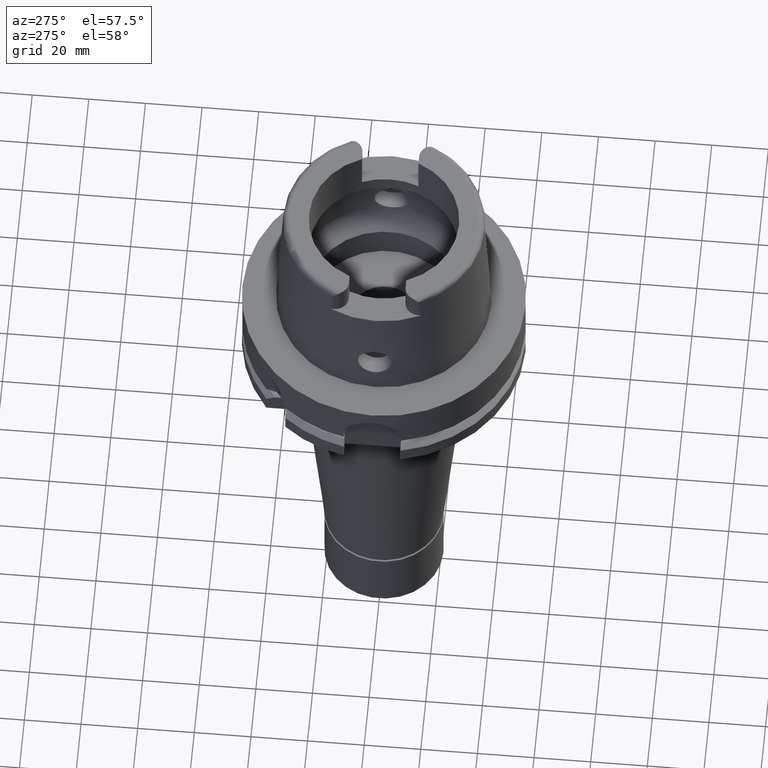
[diagram: clean part render]
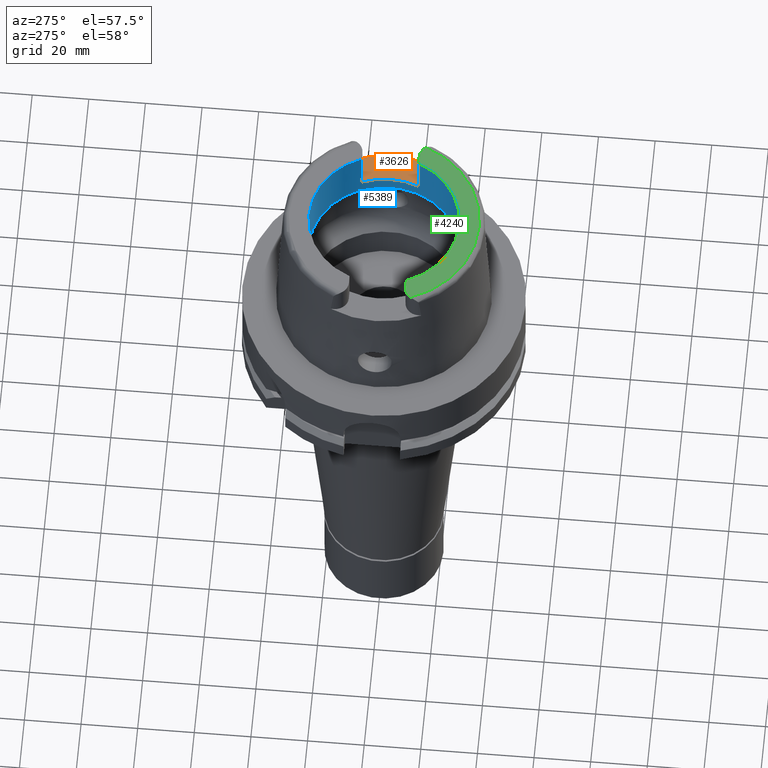
[diagram: same view with three faces highlighted in distinct colors, each labeled with its STEP entity id]
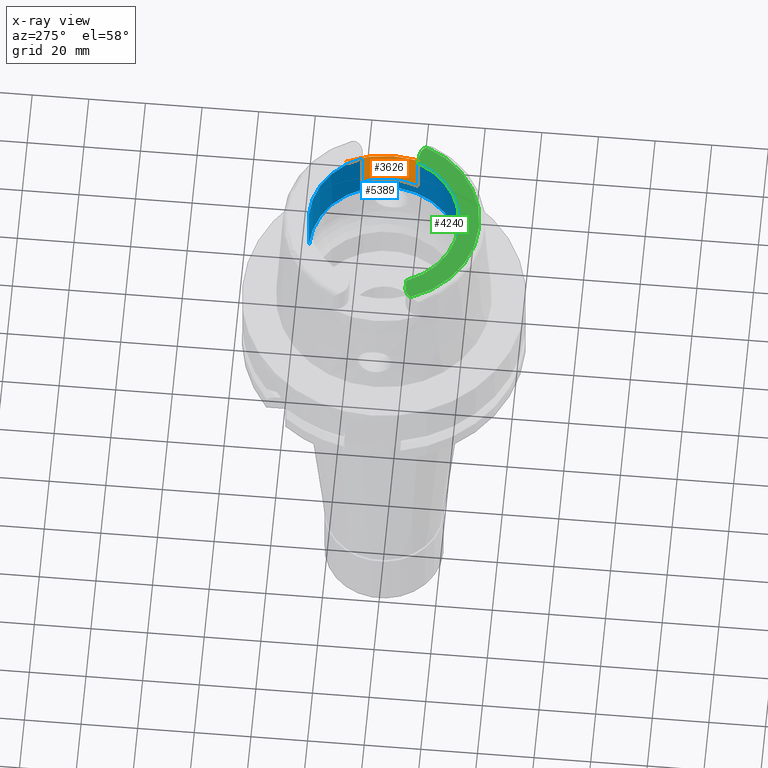
[diagram: x-ray of the same camera — body ghosted, the three highlighted faces saturated]
A machine part, auxiliary view with three faces highlighted in distinct colors.
The next image is the same camera in x-ray (body ghosted, the three faces saturated) — at least one of them is partly hidden behind the body in this view.
Their STEP definitions:

[orange] entity #3626 — the highlighted planar face has unit normal (0, 0, 1).
#25 = VERTEX_POINT ( 'NONE', #1719 ) ;
#100 = VERTEX_POINT ( 'NONE', #5228 ) ;
#275 = ORIENTED_EDGE ( 'NONE', *, *, #1398, .F. ) ;
#385 = CARTESIAN_POINT ( 'NONE',  ( 32.25000000000000000, -14.89000000000000057, 35.00000000000000000 ) ) ;
#440 = PLANE ( 'NONE',  #624 ) ;
#550 = ORIENTED_EDGE ( 'NONE', *, *, #5430, .F. ) ;
#624 = AXIS2_PLACEMENT_3D ( 'NONE', #707, #5454, #2165 ) ;
#707 = CARTESIAN_POINT ( 'NONE',  ( 0.0000000000000000000, 0.0000000000000000000, 35.00000000000000000 ) ) ;
#735 = CARTESIAN_POINT ( 'NONE',  ( 0.0000000000000000000, 0.0000000000000000000, 35.00000000000000000 ) ) ;
#752 = CARTESIAN_POINT ( 'NONE',  ( 32.25000000000000000, -15.44428485661910599, 35.00000000000000000 ) ) ;
#958 = CARTESIAN_POINT ( 'NONE',  ( 27.36999999999999744, -14.89000000000000057, 35.00000000000000000 ) ) ;
#1057 = CARTESIAN_POINT ( 'NONE',  ( 27.36999999999999744, 10.00999999999999979, 35.00000000000000000 ) ) ;
#1177 = DIRECTION ( 'NONE',  ( 0.0000000000000000000, 0.0000000000000000000, 1.000000000000000000 ) ) ;
#1270 = ORIENTED_EDGE ( 'NONE', *, *, #4353, .F. ) ;
#1300 = EDGE_CURVE ( 'NONE', #5100, #4832, #4510, .T. ) ;
#1342 = CARTESIAN_POINT ( 'NONE',  ( 32.25000000000000000, -14.89000000000000057, 35.00000000000000000 ) ) ;
#1352 = LINE ( 'NONE', #3947, #2355 ) ;
#1398 = EDGE_CURVE ( 'NONE', #4832, #25, #2310, .T. ) ;
#1598 = ORIENTED_EDGE ( 'NONE', *, *, #4784, .F. ) ;
#1638 = DIRECTION ( 'NONE',  ( 0.0000000000000000000, -1.000000000000000000, 0.0000000000000000000 ) ) ;
#1710 = AXIS2_PLACEMENT_3D ( 'NONE', #735, #1177, #5476 ) ;
#1716 = B_SPLINE_CURVE_WITH_KNOTS ( 'NONE', 3,
 ( #4257, #3796, #752, #385 ),
 .UNSPECIFIED., .F., .F.,
 ( 4, 4 ),
 ( 0.0000000000000000000, 1.000000000000000000 ),
 .UNSPECIFIED. ) ;
#1719 = CARTESIAN_POINT ( 'NONE',  ( 24.53670515777999839, -10.00999999999999979, 35.00000000000000000 ) ) ;
#1803 = EDGE_LOOP ( 'NONE', ( #275, #4851, #1598, #550, #2552, #5238, #2835, #1270 ) ) ;
#1878 = CARTESIAN_POINT ( 'NONE',  ( 27.36999999999999744, -10.00999999999999979, 35.00000000000000000 ) ) ;
#2118 = EDGE_CURVE ( 'NONE', #5173, #100, #3754, .T. ) ;
#2149 = CARTESIAN_POINT ( 'NONE',  ( 27.36999999999999744, 14.89000000000000057, 35.00000000000000000 ) ) ;
#2165 = DIRECTION ( 'NONE',  ( 1.000000000000000000, 0.0000000000000000000, 0.0000000000000000000 ) ) ;
#2187 = DIRECTION ( 'NONE',  ( 0.8896561898442558736, 0.4566309931134779343, 0.0000000000000000000 ) ) ;
#2278 = CARTESIAN_POINT ( 'NONE',  ( 32.25000000000000000, -16.55285457013000183, 35.00000000000000000 ) ) ;
#2310 = LINE ( 'NONE', #1878, #3328 ) ;
#2355 = VECTOR ( 'NONE', #4375, 1000.000000000000000 ) ;
#2448 = CIRCLE ( 'NONE', #3884, 36.24995854370000359 ) ;
#2550 = CARTESIAN_POINT ( 'NONE',  ( 32.25000000000000000, 16.55285457013000183, 35.00000000000000000 ) ) ;
#2552 = ORIENTED_EDGE ( 'NONE', *, *, #3211, .F. ) ;
#2777 = VECTOR ( 'NONE', #3727, 1000.000000000000114 ) ;
#2835 = ORIENTED_EDGE ( 'NONE', *, *, #4515, .F. ) ;
#2856 = CARTESIAN_POINT ( 'NONE',  ( 0.0000000000000000000, 0.0000000000000000000, 35.00000000000000000 ) ) ;
#2997 = DIRECTION ( 'NONE',  ( 0.0000000000000000000, 0.0000000000000000000, 1.000000000000000000 ) ) ;
#3153 = DIRECTION ( 'NONE',  ( 1.000000000000000000, 0.0000000000000000000, 0.0000000000000000000 ) ) ;
#3205 = DIRECTION ( 'NONE',  ( -1.000000000000000000, -1.460812116737999860E-13, 0.0000000000000000000 ) ) ;
#3211 = EDGE_CURVE ( 'NONE', #100, #5535, #3377, .T. ) ;
#3328 = VECTOR ( 'NONE', #3205, 1000.000000000000000 ) ;
#3377 = LINE ( 'NONE', #4627, #2777 ) ;
#3437 = CARTESIAN_POINT ( 'NONE',  ( 24.53670515777999839, 10.00999999999999979, 35.00000000000000000 ) ) ;
#3626 = ADVANCED_FACE ( 'NONE', ( #5510 ), #440, .T. ) ;
#3633 = DIRECTION ( 'NONE',  ( 0.0000000000000000000, 0.0000000000000000000, 1.000000000000000000 ) ) ;
#3727 = DIRECTION ( 'NONE',  ( -2.841526755965894529E-06, 0.9999999999959628960, 2.136488158935919871E-14 ) ) ;
#3754 = CIRCLE ( 'NONE', #4212, 4.879999999999999005 ) ;
#3796 = CARTESIAN_POINT ( 'NONE',  ( 32.25000000000000000, -15.99856971323821142, 35.00000000000000000 ) ) ;
#3884 = AXIS2_PLACEMENT_3D ( 'NONE', #2856, #3907, #2187 ) ;
#3907 = DIRECTION ( 'NONE',  ( 0.0000000000000000000, 0.0000000000000000000, -1.000000000000000000 ) ) ;
#3947 = CARTESIAN_POINT ( 'NONE',  ( 24.53670515777999839, 10.00999999999999979, 35.00000000000000000 ) ) ;
#4212 = AXIS2_PLACEMENT_3D ( 'NONE', #2149, #2997, #1638 ) ;
#4257 = CARTESIAN_POINT ( 'NONE',  ( 32.25000000000000000, -16.55285457013000183, 35.00000000000000000 ) ) ;
#4353 = EDGE_CURVE ( 'NONE', #25, #4397, #4424, .T. ) ;
#4375 = DIRECTION ( 'NONE',  ( 1.000000000000000000, -1.416925057436999913E-13, 0.0000000000000000000 ) ) ;
#4397 = VERTEX_POINT ( 'NONE', #3437 ) ;
#4414 = AXIS2_PLACEMENT_3D ( 'NONE', #958, #3633, #3153 ) ;
#4424 = CIRCLE ( 'NONE', #1710, 26.50000000000000711 ) ;
#4510 = CIRCLE ( 'NONE', #4414, 4.880000000000002558 ) ;
#4515 = EDGE_CURVE ( 'NONE', #4397, #5173, #1352, .T. ) ;
#4627 = CARTESIAN_POINT ( 'NONE',  ( 32.25000000000000000, 14.89000000000000057, 35.00000000000000000 ) ) ;
#4784 = EDGE_CURVE ( 'NONE', #5246, #5100, #1716, .T. ) ;
#4832 = VERTEX_POINT ( 'NONE', #5527 ) ;
#4851 = ORIENTED_EDGE ( 'NONE', *, *, #1300, .F. ) ;
#5100 = VERTEX_POINT ( 'NONE', #1342 ) ;
#5173 = VERTEX_POINT ( 'NONE', #1057 ) ;
#5228 = CARTESIAN_POINT ( 'NONE',  ( 32.25000000000000000, 14.89000000000000057, 35.00000000000000000 ) ) ;
#5238 = ORIENTED_EDGE ( 'NONE', *, *, #2118, .F. ) ;
#5246 = VERTEX_POINT ( 'NONE', #2278 ) ;
#5430 = EDGE_CURVE ( 'NONE', #5535, #5246, #2448, .T. ) ;
#5454 = DIRECTION ( 'NONE',  ( 0.0000000000000000000, 0.0000000000000000000, 1.000000000000000000 ) ) ;
#5476 = DIRECTION ( 'NONE',  ( 0.9259134021805098813, -0.3777358490566039562, 0.0000000000000000000 ) ) ;
#5510 = FACE_OUTER_BOUND ( 'NONE', #1803, .T. ) ;
#5527 = CARTESIAN_POINT ( 'NONE',  ( 27.36999999999999744, -10.00999999999999979, 35.00000000000000000 ) ) ;
#5535 = VERTEX_POINT ( 'NONE', #2550 ) ;

[blue] entity #5389 — the highlighted cylindrical surface (partial cylindrical patch) has radius 26.5 mm, axis along (0, 0, 1).
#25 = VERTEX_POINT ( 'NONE', #1719 ) ;
#56 = LINE ( 'NONE', #477, #267 ) ;
#207 = ORIENTED_EDGE ( 'NONE', *, *, #2075, .T. ) ;
#267 = VECTOR ( 'NONE', #5198, 1000.000000000000000 ) ;
#313 = CARTESIAN_POINT ( 'NONE',  ( 0.0000000000000000000, 26.50000000000000000, 30.00337567297000163 ) ) ;
#425 = CARTESIAN_POINT ( 'NONE',  ( 24.53670515777999839, -10.00999999999999979, 35.00000000000000000 ) ) ;
#477 = CARTESIAN_POINT ( 'NONE',  ( 0.0000000000000000000, -26.50000000000000000, 30.00337567297000163 ) ) ;
#516 = DIRECTION ( 'NONE',  ( 0.0000000000000000000, 0.0000000000000000000, -1.000000000000000000 ) ) ;
#555 = AXIS2_PLACEMENT_3D ( 'NONE', #2123, #516, #3532 ) ;
#609 = VECTOR ( 'NONE', #2036, 1000.000000000000000 ) ;
#615 = CARTESIAN_POINT ( 'NONE',  ( 24.53670515777999839, 10.00999999999999979, 50.00000000000000000 ) ) ;
#733 = AXIS2_PLACEMENT_3D ( 'NONE', #1586, #746, #1162 ) ;
#735 = CARTESIAN_POINT ( 'NONE',  ( 0.0000000000000000000, 0.0000000000000000000, 35.00000000000000000 ) ) ;
#746 = DIRECTION ( 'NONE',  ( 0.0000000000000000000, 0.0000000000000000000, 1.000000000000000000 ) ) ;
#801 = FACE_OUTER_BOUND ( 'NONE', #5156, .T. ) ;
#825 = EDGE_CURVE ( 'NONE', #25, #1018, #4186, .T. ) ;
#982 = ORIENTED_EDGE ( 'NONE', *, *, #1205, .T. ) ;
#1018 = VERTEX_POINT ( 'NONE', #4780 ) ;
#1162 = DIRECTION ( 'NONE',  ( 0.0000000000000000000, 1.000000000000000000, 0.0000000000000000000 ) ) ;
#1177 = DIRECTION ( 'NONE',  ( 0.0000000000000000000, 0.0000000000000000000, 1.000000000000000000 ) ) ;
#1205 = EDGE_CURVE ( 'NONE', #1254, #5540, #1800, .T. ) ;
#1221 = ORIENTED_EDGE ( 'NONE', *, *, #825, .F. ) ;
#1254 = VERTEX_POINT ( 'NONE', #1484 ) ;
#1346 = EDGE_CURVE ( 'NONE', #1254, #4397, #4479, .T. ) ;
#1374 = CARTESIAN_POINT ( 'NONE',  ( 0.0000000000000000000, -26.50000000000000000, 30.00337567297000163 ) ) ;
#1380 = DIRECTION ( 'NONE',  ( 0.0000000000000000000, 0.0000000000000000000, -1.000000000000000000 ) ) ;
#1484 = CARTESIAN_POINT ( 'NONE',  ( 24.53670515777999839, 10.00999999999999979, 50.00000000000000000 ) ) ;
#1586 = CARTESIAN_POINT ( 'NONE',  ( 0.0000000000000000000, 0.0000000000000000000, -167.8750000000000000 ) ) ;
#1596 = ORIENTED_EDGE ( 'NONE', *, *, #4353, .T. ) ;
#1710 = AXIS2_PLACEMENT_3D ( 'NONE', #735, #1177, #5476 ) ;
#1719 = CARTESIAN_POINT ( 'NONE',  ( 24.53670515777999839, -10.00999999999999979, 35.00000000000000000 ) ) ;
#1800 = CIRCLE ( 'NONE', #3414, 26.50000000000000711 ) ;
#2036 = DIRECTION ( 'NONE',  ( 0.0000000000000000000, -4.370575506604999649E-14, 1.000000000000000000 ) ) ;
#2070 = VECTOR ( 'NONE', #1380, 1000.000000000000000 ) ;
#2075 = EDGE_CURVE ( 'NONE', #4989, #1018, #3039, .T. ) ;
#2113 = EDGE_CURVE ( 'NONE', #5472, #5540, #2517, .T. ) ;
#2123 = CARTESIAN_POINT ( 'NONE',  ( 0.0000000000000000000, 0.0000000000000000000, 30.00337567297000163 ) ) ;
#2131 = CARTESIAN_POINT ( 'NONE',  ( 0.0000000000000000000, -26.50000000000000000, 50.00000000000000000 ) ) ;
#2148 = DIRECTION ( 'NONE',  ( 0.0000000000000000000, 0.0000000000000000000, 1.000000000000000000 ) ) ;
#2517 = LINE ( 'NONE', #313, #609 ) ;
#2519 = CYLINDRICAL_SURFACE ( 'NONE', #733, 26.50000000000000000 ) ;
#2812 = VERTEX_POINT ( 'NONE', #1374 ) ;
#2951 = CARTESIAN_POINT ( 'NONE',  ( 0.0000000000000000000, 0.0000000000000000000, 50.00000000000000000 ) ) ;
#2968 = DIRECTION ( 'NONE',  ( 0.0000000000000000000, 0.0000000000000000000, 1.000000000000000000 ) ) ;
#3039 = CIRCLE ( 'NONE', #4040, 26.50000000000000000 ) ;
#3158 = ORIENTED_EDGE ( 'NONE', *, *, #5442, .T. ) ;
#3414 = AXIS2_PLACEMENT_3D ( 'NONE', #2951, #4704, #4672 ) ;
#3437 = CARTESIAN_POINT ( 'NONE',  ( 24.53670515777999839, 10.00999999999999979, 35.00000000000000000 ) ) ;
#3532 = DIRECTION ( 'NONE',  ( 0.0000000000000000000, 1.000000000000000000, 0.0000000000000000000 ) ) ;
#3841 = CARTESIAN_POINT ( 'NONE',  ( 0.0000000000000000000, 0.0000000000000000000, 50.00000000000000000 ) ) ;
#3909 = ORIENTED_EDGE ( 'NONE', *, *, #2113, .F. ) ;
#3934 = CARTESIAN_POINT ( 'NONE',  ( 0.0000000000000000000, 26.50000000000000000, 50.00000000000000000 ) ) ;
#4040 = AXIS2_PLACEMENT_3D ( 'NONE', #3841, #2968, #5176 ) ;
#4186 = LINE ( 'NONE', #425, #5500 ) ;
#4353 = EDGE_CURVE ( 'NONE', #25, #4397, #4424, .T. ) ;
#4388 = CARTESIAN_POINT ( 'NONE',  ( 0.0000000000000000000, 26.50000000000000000, 30.00337567297000163 ) ) ;
#4397 = VERTEX_POINT ( 'NONE', #3437 ) ;
#4424 = CIRCLE ( 'NONE', #1710, 26.50000000000000711 ) ;
#4479 = LINE ( 'NONE', #615, #2070 ) ;
#4506 = EDGE_CURVE ( 'NONE', #2812, #4989, #56, .T. ) ;
#4672 = DIRECTION ( 'NONE',  ( 0.9259134021805098813, 0.3777358490566039562, 0.0000000000000000000 ) ) ;
#4704 = DIRECTION ( 'NONE',  ( 0.0000000000000000000, 0.0000000000000000000, 1.000000000000000000 ) ) ;
#4760 = ORIENTED_EDGE ( 'NONE', *, *, #4506, .T. ) ;
#4780 = CARTESIAN_POINT ( 'NONE',  ( 24.53670515777999839, -10.00999999999999979, 50.00000000000000000 ) ) ;
#4989 = VERTEX_POINT ( 'NONE', #2131 ) ;
#5156 = EDGE_LOOP ( 'NONE', ( #5401, #982, #3909, #3158, #4760, #207, #1221, #1596 ) ) ;
#5176 = DIRECTION ( 'NONE',  ( 0.0000000000000000000, -1.000000000000000000, 0.0000000000000000000 ) ) ;
#5198 = DIRECTION ( 'NONE',  ( 0.0000000000000000000, 4.370575506604999649E-14, 1.000000000000000000 ) ) ;
#5333 = CIRCLE ( 'NONE', #555, 26.50000000000000000 ) ;
#5389 = ADVANCED_FACE ( 'NONE', ( #801 ), #2519, .F. ) ;
#5401 = ORIENTED_EDGE ( 'NONE', *, *, #1346, .F. ) ;
#5442 = EDGE_CURVE ( 'NONE', #5472, #2812, #5333, .T. ) ;
#5472 = VERTEX_POINT ( 'NONE', #4388 ) ;
#5476 = DIRECTION ( 'NONE',  ( 0.9259134021805098813, -0.3777358490566039562, 0.0000000000000000000 ) ) ;
#5500 = VECTOR ( 'NONE', #2148, 1000.000000000000000 ) ;
#5540 = VERTEX_POINT ( 'NONE', #3934 ) ;

[green] entity #4240 — the highlighted planar face has unit normal (0, 0, 1).
#92 = ORIENTED_EDGE ( 'NONE', *, *, #485, .T. ) ;
#131 = CARTESIAN_POINT ( 'NONE',  ( 27.36999999999999744, -10.00999999999999979, 50.00000000000000000 ) ) ;
#136 = EDGE_LOOP ( 'NONE', ( #3553, #1826, #1636, #2842, #694, #92, #1657 ) ) ;
#236 = EDGE_CURVE ( 'NONE', #5122, #4989, #1071, .T. ) ;
#328 = EDGE_CURVE ( 'NONE', #2772, #5301, #4324, .T. ) ;
#453 = EDGE_CURVE ( 'NONE', #2772, #1018, #2282, .T. ) ;
#485 = EDGE_CURVE ( 'NONE', #5122, #894, #1095, .T. ) ;
#544 = EDGE_CURVE ( 'NONE', #5484, #894, #632, .T. ) ;
#632 = CIRCLE ( 'NONE', #4673, 4.880000000000001670 ) ;
#666 = CARTESIAN_POINT ( 'NONE',  ( -24.53670515777999839, -10.00999999999999979, 50.00000000000000000 ) ) ;
#694 = ORIENTED_EDGE ( 'NONE', *, *, #236, .F. ) ;
#803 = CIRCLE ( 'NONE', #3958, 33.59743838135999994 ) ;
#819 = AXIS2_PLACEMENT_3D ( 'NONE', #5063, #3760, #2492 ) ;
#887 = CARTESIAN_POINT ( 'NONE',  ( 0.0000000000000000000, 0.0000000000000000000, 50.00000000000000000 ) ) ;
#894 = VERTEX_POINT ( 'NONE', #1663 ) ;
#910 = EDGE_CURVE ( 'NONE', #5301, #5484, #803, .T. ) ;
#932 = DIRECTION ( 'NONE',  ( 0.0000000000000000000, 0.0000000000000000000, 1.000000000000000000 ) ) ;
#977 = CARTESIAN_POINT ( 'NONE',  ( 27.36999999999999744, -10.00999999999999979, 50.00000000000000000 ) ) ;
#1018 = VERTEX_POINT ( 'NONE', #4780 ) ;
#1071 = CIRCLE ( 'NONE', #2693, 26.50000000000000711 ) ;
#1095 = LINE ( 'NONE', #3232, #4328 ) ;
#1237 = DIRECTION ( 'NONE',  ( 0.0000000000000000000, 0.0000000000000000000, -1.000000000000000000 ) ) ;
#1240 = CARTESIAN_POINT ( 'NONE',  ( 31.35385269249000473, -12.07161079256999869, 50.00000000000000000 ) ) ;
#1636 = ORIENTED_EDGE ( 'NONE', *, *, #453, .T. ) ;
#1657 = ORIENTED_EDGE ( 'NONE', *, *, #544, .F. ) ;
#1663 = CARTESIAN_POINT ( 'NONE',  ( -27.36999999999999744, -10.00999999999999979, 50.00000000000000000 ) ) ;
#1826 = ORIENTED_EDGE ( 'NONE', *, *, #328, .F. ) ;
#2039 = PLANE ( 'NONE',  #819 ) ;
#2075 = EDGE_CURVE ( 'NONE', #4989, #1018, #3039, .T. ) ;
#2131 = CARTESIAN_POINT ( 'NONE',  ( 0.0000000000000000000, -26.50000000000000000, 50.00000000000000000 ) ) ;
#2282 = LINE ( 'NONE', #131, #5044 ) ;
#2470 = FACE_OUTER_BOUND ( 'NONE', #136, .T. ) ;
#2492 = DIRECTION ( 'NONE',  ( 1.000000000000000000, 0.0000000000000000000, 0.0000000000000000000 ) ) ;
#2574 = DIRECTION ( 'NONE',  ( 0.9332215253017949186, -0.3593015233941980191, 0.0000000000000000000 ) ) ;
#2651 = DIRECTION ( 'NONE',  ( 0.0000000000000000000, 1.000000000000000000, 0.0000000000000000000 ) ) ;
#2693 = AXIS2_PLACEMENT_3D ( 'NONE', #2950, #932, #3827 ) ;
#2772 = VERTEX_POINT ( 'NONE', #977 ) ;
#2842 = ORIENTED_EDGE ( 'NONE', *, *, #2075, .F. ) ;
#2950 = CARTESIAN_POINT ( 'NONE',  ( 0.0000000000000000000, 0.0000000000000000000, 50.00000000000000000 ) ) ;
#2968 = DIRECTION ( 'NONE',  ( 0.0000000000000000000, 0.0000000000000000000, 1.000000000000000000 ) ) ;
#3039 = CIRCLE ( 'NONE', #4040, 26.50000000000000000 ) ;
#3232 = CARTESIAN_POINT ( 'NONE',  ( -24.53670515777999839, -10.00999999999999979, 50.00000000000000000 ) ) ;
#3340 = CARTESIAN_POINT ( 'NONE',  ( -27.36999999999999744, -14.89000000000000057, 50.00000000000000000 ) ) ;
#3553 = ORIENTED_EDGE ( 'NONE', *, *, #910, .F. ) ;
#3760 = DIRECTION ( 'NONE',  ( 0.0000000000000000000, 0.0000000000000000000, 1.000000000000000000 ) ) ;
#3827 = DIRECTION ( 'NONE',  ( -0.9259134021805098813, -0.3777358490566039562, 0.0000000000000000000 ) ) ;
#3841 = CARTESIAN_POINT ( 'NONE',  ( 0.0000000000000000000, 0.0000000000000000000, 50.00000000000000000 ) ) ;
#3958 = AXIS2_PLACEMENT_3D ( 'NONE', #887, #1237, #2574 ) ;
#3961 = CARTESIAN_POINT ( 'NONE',  ( -31.35385269249000473, -12.07161079256999869, 50.00000000000000000 ) ) ;
#4040 = AXIS2_PLACEMENT_3D ( 'NONE', #3841, #2968, #5176 ) ;
#4115 = DIRECTION ( 'NONE',  ( -0.8163632566568778115, 0.5775387720149849358, 0.0000000000000000000 ) ) ;
#4170 = DIRECTION ( 'NONE',  ( 0.0000000000000000000, 0.0000000000000000000, -1.000000000000000000 ) ) ;
#4240 = ADVANCED_FACE ( 'NONE', ( #2470 ), #2039, .T. ) ;
#4324 = CIRCLE ( 'NONE', #5036, 4.879999999999999005 ) ;
#4328 = VECTOR ( 'NONE', #4984, 1000.000000000000000 ) ;
#4671 = DIRECTION ( 'NONE',  ( 0.0000000000000000000, 0.0000000000000000000, -1.000000000000000000 ) ) ;
#4673 = AXIS2_PLACEMENT_3D ( 'NONE', #3340, #4170, #4115 ) ;
#4780 = CARTESIAN_POINT ( 'NONE',  ( 24.53670515777999839, -10.00999999999999979, 50.00000000000000000 ) ) ;
#4984 = DIRECTION ( 'NONE',  ( -1.000000000000000000, 1.442003377036999905E-13, 0.0000000000000000000 ) ) ;
#4989 = VERTEX_POINT ( 'NONE', #2131 ) ;
#5036 = AXIS2_PLACEMENT_3D ( 'NONE', #5255, #4671, #2651 ) ;
#5044 = VECTOR ( 'NONE', #5302, 1000.000000000000000 ) ;
#5063 = CARTESIAN_POINT ( 'NONE',  ( 0.0000000000000000000, 0.0000000000000000000, 50.00000000000000000 ) ) ;
#5122 = VERTEX_POINT ( 'NONE', #666 ) ;
#5176 = DIRECTION ( 'NONE',  ( 0.0000000000000000000, -1.000000000000000000, 0.0000000000000000000 ) ) ;
#5255 = CARTESIAN_POINT ( 'NONE',  ( 27.36999999999999744, -14.89000000000000057, 50.00000000000000000 ) ) ;
#5301 = VERTEX_POINT ( 'NONE', #1240 ) ;
#5302 = DIRECTION ( 'NONE',  ( -1.000000000000000000, -1.454542536837999925E-13, 0.0000000000000000000 ) ) ;
#5484 = VERTEX_POINT ( 'NONE', #3961 ) ;